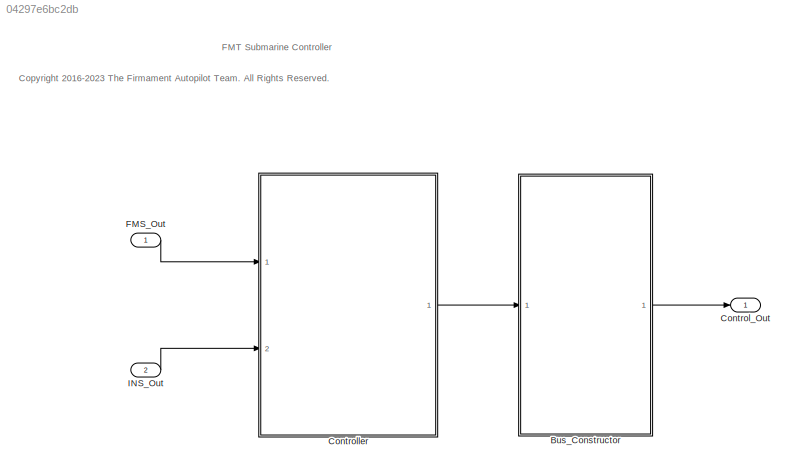
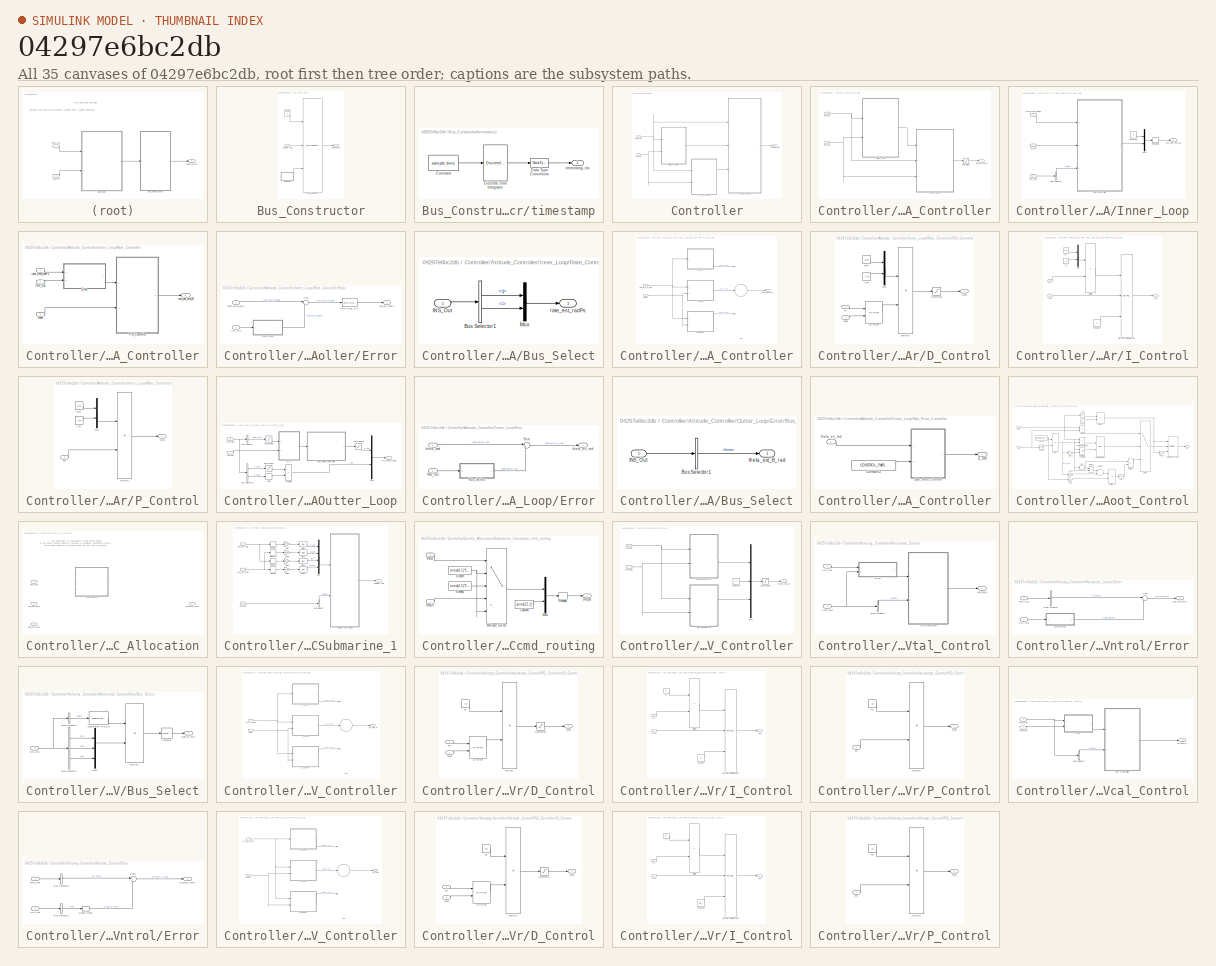
[diagram: thumbnail index - all 35 canvases of the model, root first then tree order]
MODEL slx_04297e6bc2db
KIND model
CONFIG AbsTol = auto
CONFIG EnableMultiTasking = off
CONFIG FixedStep = control_dt
CONFIG MaxStep = auto
CONFIG MinStep = auto
CONFIG RelTol = 1e-3
CONFIG SampleTimeConstraint = Unconstrained
CONFIG Solver = FixedStepDiscrete
CONFIG SolverName = FixedStepDiscrete
CONFIG StartTime = 0.0
CONFIG StopTime = 10.0
BLOCK [SubSystem] Bus_Constructor
  Ports = [1, 1]
  RequestExecContextInheritance = off
BLOCK [BusAssignment] Bus_Constructor/Bus Assignment
  AssignedSignals = actuator_cmd,timestamp
  Ports = [3, 1]
BLOCK [Constant] Bus_Constructor/Constant
  OutDataTypeStr = Bus: Control_Out_Bus
  Value = 0
BLOCK [Outport] Bus_Constructor/Control_Out
  IconDisplay = Port number
BLOCK [Inport] Bus_Constructor/actuator_cmd
  IconDisplay = Port number
BLOCK [SubSystem] Bus_Constructor/timestamp
  Ports = [0, 1]
  RequestExecContextInheritance = off
BLOCK [Constant] Bus_Constructor/timestamp/Constant
  Value = sample_time
BLOCK [DataTypeConversion] Bus_Constructor/timestamp/Data Type Conversion
  OutDataTypeStr = uint32
  RndMeth = Floor
  SaturateOnIntegerOverflow = off
BLOCK [DiscreteIntegrator] Bus_Constructor/timestamp/Discrete-Time Integrator
  ICPrevOutput = DiscIntNeverNeededParam
  ICPrevScaledInput = DiscIntNeverNeededParam
  InitialConditionSetting = Auto
  IntegratorMethod = Accumulation: Forward Euler
  Ports = [1, 1]
  SampleTime = -1
BLOCK [Outport] Bus_Constructor/timestamp/timestamp_ms
  IconDisplay = Port number
BLOCK [Outport] Control_Out
  IconDisplay = Port number
  OutDataTypeStr = Bus: Control_Out_Bus
BLOCK [SubSystem] Controller
  Ports = [2, 1]
  RequestExecContextInheritance = off
BLOCK [SubSystem] Controller/Attitude_Controller
  Ports = [2, 1]
  RequestExecContextInheritance = off
BLOCK [Inport] Controller/Attitude_Controller/FMS_Out
  IconDisplay = Port number
BLOCK [Inport] Controller/Attitude_Controller/INS_Out
  IconDisplay = Port number
  Port = 2
BLOCK [SubSystem] Controller/Attitude_Controller/Inner_Loop
  Ports = [3, 1]
  RequestExecContextInheritance = off
BLOCK [BusSelector] Controller/Attitude_Controller/Inner_Loop/Bus Selector
  OutputAsBus = off
  OutputSignals = reset
  Ports = [1, 1]
BLOCK [Constant] Controller/Attitude_Controller/Inner_Loop/Constant
  OutDataTypeStr = single
  Value = 0
BLOCK [Inport] Controller/Attitude_Controller/Inner_Loop/FMS_Out
  IconDisplay = Port number
  Port = 3
BLOCK [Inport] Controller/Attitude_Controller/Inner_Loop/INS_Out
  IconDisplay = Port number
  Port = 2
BLOCK [Mux] Controller/Attitude_Controller/Inner_Loop/Mux
  DisplayOption = bar
  Inputs = 2
  Ports = [2, 1]
BLOCK [SubSystem] Controller/Attitude_Controller/Inner_Loop/Rate_Controller
  Ports = [3, 1]
  RequestExecContextInheritance = off
BLOCK [SubSystem] Controller/Attitude_Controller/Inner_Loop/Rate_Controller/Error
  Ports = [2, 1]
  RequestExecContextInheritance = off
BLOCK [SubSystem] Controller/Attitude_Controller/Inner_Loop/Rate_Controller/Error/Bus_Select
  Ports = [1, 1]
  RequestExecContextInheritance = off
BLOCK [BusSelector] Controller/Attitude_Controller/Inner_Loop/Rate_Controller/Error/Bus_Select/Bus Selector1
  OutputAsBus = off
  OutputSignals = q,r
  Ports = [1, 2]
BLOCK [Inport] Controller/Attitude_Controller/Inner_Loop/Rate_Controller/Error/Bus_Select/INS_Out
  IconDisplay = Port number
BLOCK [Mux] Controller/Attitude_Controller/Inner_Loop/Rate_Controller/Error/Bus_Select/Mux
  DisplayOption = bar
  Inputs = 2
  Ports = [2, 1]
BLOCK [Outport] Controller/Attitude_Controller/Inner_Loop/Rate_Controller/Error/Bus_Select/rate_est_radPs
  IconDisplay = Port number
BLOCK [Reference] Controller/Attitude_Controller/Inner_Loop/Rate_Controller/Error/First Order LPF  REF=FMT_Model_Lib/Filter/First Order LPF
  Ports = [1, 1]
  SourceBlock = FMT_Model_Lib/Filter/First Order LPF
  SourceProductName = FMT Toolbox
  SourceType = First-order Low-pass filter
BLOCK [Inport] Controller/Attitude_Controller/Inner_Loop/Rate_Controller/Error/INS_Out
  IconDisplay = Port number
  Port = 2
BLOCK [Sum] Controller/Attitude_Controller/Inner_Loop/Rate_Controller/Error/Sum
  IconShape = round
  InputSameDT = off
  Inputs = |+-
  OutDataTypeStr = Inherit: Inherit via internal rule
  Ports = [2, 1]
  SaturateOnIntegerOverflow = off
BLOCK [Outport] Controller/Attitude_Controller/Inner_Loop/Rate_Controller/Error/rate_err_radPs
  IconDisplay = Port number
BLOCK [Inport] Controller/Attitude_Controller/Inner_Loop/Rate_Controller/Error/rater_cmd_radPs
  IconDisplay = Port number
BLOCK [Inport] Controller/Attitude_Controller/Inner_Loop/Rate_Controller/INS_Out
  IconDisplay = Port number
  Port = 2
BLOCK [SubSystem] Controller/Attitude_Controller/Inner_Loop/Rate_Controller/PID_Controller
  Ports = [2, 1]
  RequestExecContextInheritance = off
BLOCK [Sum] Controller/Attitude_Controller/Inner_Loop/Rate_Controller/PID_Controller/Add
  AccumDataTypeStr = Inherit: Same as first input
  InputSameDT = off
  Inputs = +++
  OutDataTypeStr = Inherit: Inherit via internal rule
  Ports = [3, 1]
  SaturateOnIntegerOverflow = off
BLOCK [SubSystem] Controller/Attitude_Controller/Inner_Loop/Rate_Controller/PID_Controller/D_Control
  Ports = [2, 1]
  RequestExecContextInheritance = off
BLOCK [Reference] Controller/Attitude_Controller/Inner_Loop/Rate_Controller/PID_Controller/D_Control/DT Filter  REF=FMT_Model_Lib/Filter/DT Filter
  Ports = [2, 1]
  SourceBlock = FMT_Model_Lib/Filter/DT Filter
  SourceProductName = FMT Toolbox
  SourceType = Derivative Tracking Filter
BLOCK [Product] Controller/Attitude_Controller/Inner_Loop/Rate_Controller/PID_Controller/D_Control/Multiply
  InputSameDT = off
  Ports = [2, 1]
  RndMeth = Floor
  SaturateOnIntegerOverflow = off
BLOCK [Mux] Controller/Attitude_Controller/Inner_Loop/Rate_Controller/PID_Controller/D_Control/Mux
  DisplayOption = bar
  Inputs = 2
  Ports = [2, 1]
BLOCK [Saturate] Controller/Attitude_Controller/Inner_Loop/Rate_Controller/PID_Controller/D_Control/Saturation
  InputPortMap = u0
  LowerLimit = min_d
  Ports = [1, 1]
  UpperLimit = max_d
BLOCK [Outport] Controller/Attitude_Controller/Inner_Loop/Rate_Controller/PID_Controller/D_Control/d_out
  IconDisplay = Port number
BLOCK [Inport] Controller/Attitude_Controller/Inner_Loop/Rate_Controller/PID_Controller/D_Control/err
  IconDisplay = Port number
BLOCK [Constant] Controller/Attitude_Controller/Inner_Loop/Rate_Controller/PID_Controller/D_Control/q_kd
  OutDataTypeStr = single
  Value = q_kd
BLOCK [Constant] Controller/Attitude_Controller/Inner_Loop/Rate_Controller/PID_Controller/D_Control/r_kd
  OutDataTypeStr = single
  Value = r_kd
BLOCK [Inport] Controller/Attitude_Controller/Inner_Loop/Rate_Controller/PID_Controller/D_Control/reset
  IconDisplay = Port number
  Port = 2
BLOCK [SubSystem] Controller/Attitude_Controller/Inner_Loop/Rate_Controller/PID_Controller/I_Control
  Ports = [2, 1]
  RequestExecContextInheritance = off
BLOCK [Constant] Controller/Attitude_Controller/Inner_Loop/Rate_Controller/PID_Controller/I_Control/Constant
  OutDataTypeStr = single
  Value = 0
BLOCK [DiscreteIntegrator] Controller/Attitude_Controller/Inner_Loop/Rate_Controller/PID_Controller/I_Control/Discrete-Time Integrator
  ExternalReset = level
  ICPrevOutput = DiscIntNeverNeededParam
  ICPrevScaledInput = DiscIntNeverNeededParam
  InitialConditionSetting = Auto
  InitialConditionSource = external
  LimitOutput = on
  LowerSaturationLimit = min_i
  Ports = [3, 1]
  SampleTime = -1
  UpperSaturationLimit = max_i
BLOCK [Product] Controller/Attitude_Controller/Inner_Loop/Rate_Controller/PID_Controller/I_Control/Multiply
  InputSameDT = off
  Ports = [2, 1]
  RndMeth = Floor
  SaturateOnIntegerOverflow = off
BLOCK [Mux] Controller/Attitude_Controller/Inner_Loop/Rate_Controller/PID_Controller/I_Control/Mux
  DisplayOption = bar
  Inputs = 2
  Ports = [2, 1]
BLOCK [Inport] Controller/Attitude_Controller/Inner_Loop/Rate_Controller/PID_Controller/I_Control/err
  IconDisplay = Port number
BLOCK [Outport] Controller/Attitude_Controller/Inner_Loop/Rate_Controller/PID_Controller/I_Control/i_out
  IconDisplay = Port number
BLOCK [Constant] Controller/Attitude_Controller/Inner_Loop/Rate_Controller/PID_Controller/I_Control/q_ki
  OutDataTypeStr = single
  Value = q_ki
BLOCK [Constant] Controller/Attitude_Controller/Inner_Loop/Rate_Controller/PID_Controller/I_Control/r_ki
  OutDataTypeStr = single
  Value = r_ki
BLOCK [Inport] Controller/Attitude_Controller/Inner_Loop/Rate_Controller/PID_Controller/I_Control/reset
  IconDisplay = Port number
  Port = 2
BLOCK [SubSystem] Controller/Attitude_Controller/Inner_Loop/Rate_Controller/PID_Controller/P_Control
  Ports = [1, 1]
  RequestExecContextInheritance = off
BLOCK [Product] Controller/Attitude_Controller/Inner_Loop/Rate_Controller/PID_Controller/P_Control/Multiply
  InputSameDT = off
  Ports = [2, 1]
  RndMeth = Floor
  SaturateOnIntegerOverflow = off
BLOCK [Mux] Controller/Attitude_Controller/Inner_Loop/Rate_Controller/PID_Controller/P_Control/Mux
  DisplayOption = bar
  Inputs = 2
  Ports = [2, 1]
BLOCK [Inport] Controller/Attitude_Controller/Inner_Loop/Rate_Controller/PID_Controller/P_Control/err
  IconDisplay = Port number
BLOCK [Outport] Controller/Attitude_Controller/Inner_Loop/Rate_Controller/PID_Controller/P_Control/p_out
  IconDisplay = Port number
BLOCK [Constant] Controller/Attitude_Controller/Inner_Loop/Rate_Controller/PID_Controller/P_Control/q_kp
  OutDataTypeStr = single
  Value = q_kp
BLOCK [Constant] Controller/Attitude_Controller/Inner_Loop/Rate_Controller/PID_Controller/P_Control/r_kp
  OutDataTypeStr = single
  Value = r_kp
BLOCK [Outport] Controller/Attitude_Controller/Inner_Loop/Rate_Controller/PID_Controller/rate_dot_cmd_C
  IconDisplay = Port number
BLOCK [Inport] Controller/Attitude_Controller/Inner_Loop/Rate_Controller/PID_Controller/rate_err_C_mPs
  IconDisplay = Port number
BLOCK [Inport] Controller/Attitude_Controller/Inner_Loop/Rate_Controller/PID_Controller/reset
  IconDisplay = Port number
  Port = 2
BLOCK [Outport] Controller/Attitude_Controller/Inner_Loop/Rate_Controller/rate_dot_cmd_B
  IconDisplay = Port number
BLOCK [Inport] Controller/Attitude_Controller/Inner_Loop/Rate_Controller/rater_cmd_radPs
  IconDisplay = Port number
BLOCK [Inport] Controller/Attitude_Controller/Inner_Loop/Rate_Controller/reset
  IconDisplay = Port number
  Port = 3
BLOCK [Reshape] Controller/Attitude_Controller/Inner_Loop/Reshape
  OutputDimensionality = Column vector (2-D)
  Ports = [1, 1]
BLOCK [Inport] Controller/Attitude_Controller/Inner_Loop/rate_cmd_radPs
  IconDisplay = Port number
BLOCK [Outport] Controller/Attitude_Controller/Inner_Loop/rate_dot_cmd_B
  IconDisplay = Port number
BLOCK [SubSystem] Controller/Attitude_Controller/Outter_Loop
  Ports = [2, 1]
  RequestExecContextInheritance = off
BLOCK [BusSelector] Controller/Attitude_Controller/Outter_Loop/Bus Selector
  OutputAsBus = off
  OutputSignals = theta_cmd
  Ports = [1, 1]
BLOCK [BusSelector] Controller/Attitude_Controller/Outter_Loop/Bus Selector1
  OutputAsBus = off
  OutputSignals = r_cmd,u_cmd
  Ports = [1, 2]
BLOCK [SubSystem] Controller/Attitude_Controller/Outter_Loop/Error
  Ports = [2, 1]
  RequestExecContextInheritance = off
BLOCK [SubSystem] Controller/Attitude_Controller/Outter_Loop/Error/Bus_Select
  Ports = [1, 1]
  RequestExecContextInheritance = off
BLOCK [BusSelector] Controller/Attitude_Controller/Outter_Loop/Error/Bus_Select/Bus Selector1
  OutputAsBus = off
  OutputSignals = theta
  Ports = [1, 1]
BLOCK [Inport] Controller/Attitude_Controller/Outter_Loop/Error/Bus_Select/INS_Out
  IconDisplay = Port number
BLOCK [Outport] Controller/Attitude_Controller/Outter_Loop/Error/Bus_Select/theta_est_B_rad
  IconDisplay = Port number
BLOCK [Inport] Controller/Attitude_Controller/Outter_Loop/Error/INS_Out
  IconDisplay = Port number
  Port = 2
BLOCK [Sum] Controller/Attitude_Controller/Outter_Loop/Error/Sum
  IconShape = round
  InputSameDT = off
  Inputs = |+-
  OutDataTypeStr = Inherit: Inherit via internal rule
  Ports = [2, 1]
  SaturateOnIntegerOverflow = off
BLOCK [Inport] Controller/Attitude_Controller/Outter_Loop/Error/theta_cmd
  IconDisplay = Port number
BLOCK [Outport] Controller/Attitude_Controller/Outter_Loop/Error/theta_err_rad
  IconDisplay = Port number
BLOCK [Inport] Controller/Attitude_Controller/Outter_Loop/FMS_Out
  IconDisplay = Port number
  Port = 2
BLOCK [Inport] Controller/Attitude_Controller/Outter_Loop/INS_Out
  IconDisplay = Port number
BLOCK [Product] Controller/Attitude_Controller/Outter_Loop/Multiply
  InputSameDT = off
  OutDataTypeStr = Inherit: Inherit via internal rule
  Ports = [2, 1]
  RndMeth = Floor
  SaturateOnIntegerOverflow = off
BLOCK [Mux] Controller/Attitude_Controller/Outter_Loop/Mux
  DisplayOption = bar
  Inputs = 2
  Ports = [2, 1]
BLOCK [Saturate] Controller/Attitude_Controller/Outter_Loop/Saturation
  InputPortMap = u0
  LowerLimit = -CONTROL_PARAM.PITCH_CMD_LIM
  Ports = [1, 1]
  UpperLimit = CONTROL_PARAM.PITCH_CMD_LIM
BLOCK [Saturate] Controller/Attitude_Controller/Outter_Loop/Saturation1
  InputPortMap = u0
  LowerLimit = -CONTROL_PARAM.R_CMD_LIM
  Ports = [1, 1]
  UpperLimit = CONTROL_PARAM.R_CMD_LIM
BLOCK [Saturate] Controller/Attitude_Controller/Outter_Loop/Saturation2
  InputPortMap = u0
  LowerLimit = -CONTROL_PARAM.Q_CMD_LIM
  Ports = [1, 1]
  UpperLimit = CONTROL_PARAM.Q_CMD_LIM
BLOCK [Signum] Controller/Attitude_Controller/Outter_Loop/Sign
BLOCK [SubSystem] Controller/Attitude_Controller/Outter_Loop/Sqrt_Root_Controller
  Ports = [1, 1]
  RequestExecContextInheritance = off
BLOCK [Constant] Controller/Attitude_Controller/Outter_Loop/Sqrt_Root_Controller/Constant2
  Value = CONTROL_PARAM.PITCH_P
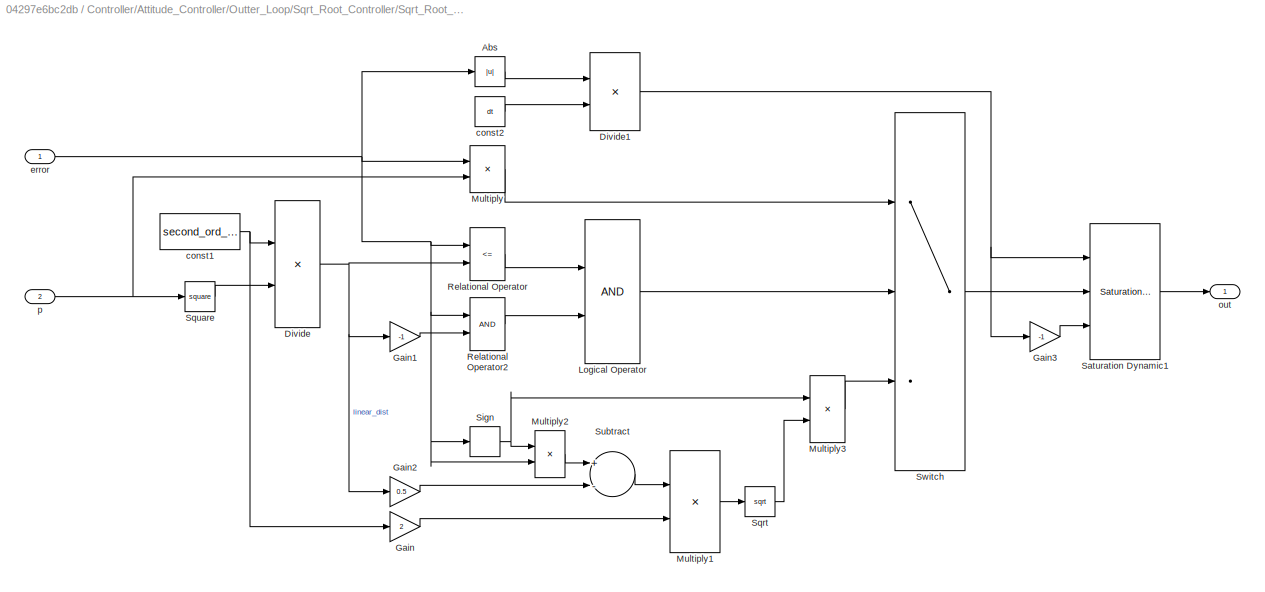
BLOCK [SubSystem] Controller/Attitude_Controller/Outter_Loop/Sqrt_Root_Controller/Sqrt_Root_Control
  Ports = [2, 1]
  RequestExecContextInheritance = off
BLOCK [Abs] Controller/Attitude_Controller/Outter_Loop/Sqrt_Root_Controller/Sqrt_Root_Control/Abs
  SaturateOnIntegerOverflow = off
BLOCK [Product] Controller/Attitude_Controller/Outter_Loop/Sqrt_Root_Controller/Sqrt_Root_Control/Divide
  InputSameDT = off
  Inputs = */
  OutDataTypeStr = Inherit: Inherit via internal rule
  Ports = [2, 1]
  RndMeth = Floor
  SaturateOnIntegerOverflow = off
BLOCK [Product] Controller/Attitude_Controller/Outter_Loop/Sqrt_Root_Controller/Sqrt_Root_Control/Divide1
  InputSameDT = off
  Inputs = */
  OutDataTypeStr = Inherit: Inherit via internal rule
  Ports = [2, 1]
  RndMeth = Floor
  SaturateOnIntegerOverflow = off
BLOCK [Gain] Controller/Attitude_Controller/Outter_Loop/Sqrt_Root_Controller/Sqrt_Root_Control/Gain
  Gain = 2
  ParamDataTypeStr = Inherit: Inherit via internal rule
  SaturateOnIntegerOverflow = off
BLOCK [Gain] Controller/Attitude_Controller/Outter_Loop/Sqrt_Root_Controller/Sqrt_Root_Control/Gain1
  Gain = -1
  ParamDataTypeStr = Inherit: Inherit via internal rule
  SaturateOnIntegerOverflow = off
BLOCK [Gain] Controller/Attitude_Controller/Outter_Loop/Sqrt_Root_Controller/Sqrt_Root_Control/Gain2
  Gain = 0.5
  ParamDataTypeStr = Inherit: Inherit via internal rule
  SaturateOnIntegerOverflow = off
BLOCK [Gain] Controller/Attitude_Controller/Outter_Loop/Sqrt_Root_Controller/Sqrt_Root_Control/Gain3
  Gain = -1
  ParamDataTypeStr = Inherit: Inherit via internal rule
  SaturateOnIntegerOverflow = off
BLOCK [Logic] Controller/Attitude_Controller/Outter_Loop/Sqrt_Root_Controller/Sqrt_Root_Control/Logical Operator
  AllPortsSameDT = off
  OutDataTypeStr = boolean
  Ports = [2, 1]
BLOCK [Product] Controller/Attitude_Controller/Outter_Loop/Sqrt_Root_Controller/Sqrt_Root_Control/Multiply
  InputSameDT = off
  OutDataTypeStr = Inherit: Inherit via internal rule
  Ports = [2, 1]
  RndMeth = Floor
  SaturateOnIntegerOverflow = off
BLOCK [Product] Controller/Attitude_Controller/Outter_Loop/Sqrt_Root_Controller/Sqrt_Root_Control/Multiply1
  InputSameDT = off
  OutDataTypeStr = Inherit: Inherit via internal rule
  Ports = [2, 1]
  RndMeth = Floor
  SaturateOnIntegerOverflow = off
BLOCK [Product] Controller/Attitude_Controller/Outter_Loop/Sqrt_Root_Controller/Sqrt_Root_Control/Multiply2
  InputSameDT = off
  OutDataTypeStr = Inherit: Inherit via internal rule
  Ports = [2, 1]
  RndMeth = Floor
  SaturateOnIntegerOverflow = off
BLOCK [Product] Controller/Attitude_Controller/Outter_Loop/Sqrt_Root_Controller/Sqrt_Root_Control/Multiply3
  InputSameDT = off
  OutDataTypeStr = Inherit: Inherit via internal rule
  Ports = [2, 1]
  RndMeth = Floor
  SaturateOnIntegerOverflow = off
BLOCK [RelationalOperator] Controller/Attitude_Controller/Outter_Loop/Sqrt_Root_Controller/Sqrt_Root_Control/Relational Operator
  InputSameDT = off
  Operator = <=
  OutDataTypeStr = boolean
  Ports = [2, 1]
  RndMeth = Simplest
BLOCK [RelationalOperator] Controller/Attitude_Controller/Outter_Loop/Sqrt_Root_Controller/Sqrt_Root_Control/Relational Operator2
  InputSameDT = off
  OutDataTypeStr = boolean
  Ports = [2, 1]
  RndMeth = Simplest
BLOCK [Reference] Controller/Attitude_Controller/Outter_Loop/Sqrt_Root_Controller/Sqrt_Root_Control/Saturation Dynamic1  REF=simulink/Discontinuities/Saturation
Dynamic
  Ports = [3, 1]
  SourceBlock = simulink/Discontinuities/Saturation\nDynamic
  SourceProductBaseCode = SL
  SourceProductName = Simulink
  SourceType = Saturation Dynamic
BLOCK [Signum] Controller/Attitude_Controller/Outter_Loop/Sqrt_Root_Controller/Sqrt_Root_Control/Sign
BLOCK [Sqrt] Controller/Attitude_Controller/Outter_Loop/Sqrt_Root_Controller/Sqrt_Root_Control/Sqrt
BLOCK [Math] Controller/Attitude_Controller/Outter_Loop/Sqrt_Root_Controller/Sqrt_Root_Control/Square
  Operator = square
  Ports = [1, 1]
BLOCK [Sum] Controller/Attitude_Controller/Outter_Loop/Sqrt_Root_Controller/Sqrt_Root_Control/Subtract
  InputSameDT = off
  Inputs = +-
  OutDataTypeStr = Inherit: Inherit via internal rule
  Ports = [2, 1]
  SaturateOnIntegerOverflow = off
BLOCK [Switch] Controller/Attitude_Controller/Outter_Loop/Sqrt_Root_Controller/Sqrt_Root_Control/Switch
  Criteria = u2 > Threshold
  InputSameDT = off
  SaturateOnIntegerOverflow = off
BLOCK [Constant] Controller/Attitude_Controller/Outter_Loop/Sqrt_Root_Controller/Sqrt_Root_Control/const1
  OutDataTypeStr = single
  Value = second_ord_lim
BLOCK [Constant] Controller/Attitude_Controller/Outter_Loop/Sqrt_Root_Controller/Sqrt_Root_Control/const2
  OutDataTypeStr = single
  Value = dt
BLOCK [Inport] Controller/Attitude_Controller/Outter_Loop/Sqrt_Root_Controller/Sqrt_Root_Control/error
  IconDisplay = Port number
BLOCK [Outport] Controller/Attitude_Controller/Outter_Loop/Sqrt_Root_Controller/Sqrt_Root_Control/out
  IconDisplay = Port number
BLOCK [Inport] Controller/Attitude_Controller/Outter_Loop/Sqrt_Root_Controller/Sqrt_Root_Control/p
  IconDisplay = Port number
  Port = 2
BLOCK [Outport] Controller/Attitude_Controller/Outter_Loop/Sqrt_Root_Controller/q_cmd
  IconDisplay = Port number
BLOCK [Inport] Controller/Attitude_Controller/Outter_Loop/Sqrt_Root_Controller/theta_err_rad
  IconDisplay = Port number
BLOCK [Outport] Controller/Attitude_Controller/Outter_Loop/rate_cmd_radPs
  IconDisplay = Port number
BLOCK [Saturate] Controller/Attitude_Controller/Saturation1
  InputPortMap = u0
  LowerLimit = -1
  Ports = [1, 1]
  UpperLimit = 1
BLOCK [Outport] Controller/Attitude_Controller/torque_cmd_B
  IconDisplay = Port number
BLOCK [SubSystem] Controller/Control_Allocation
  GeneratePreprocessorConditionals = on
  Ports = [3, 1]
  RequestExecContextInheritance = off
  Variant = on
BLOCK [Inport] Controller/Control_Allocation/FMS_Out
  IconDisplay = Port number
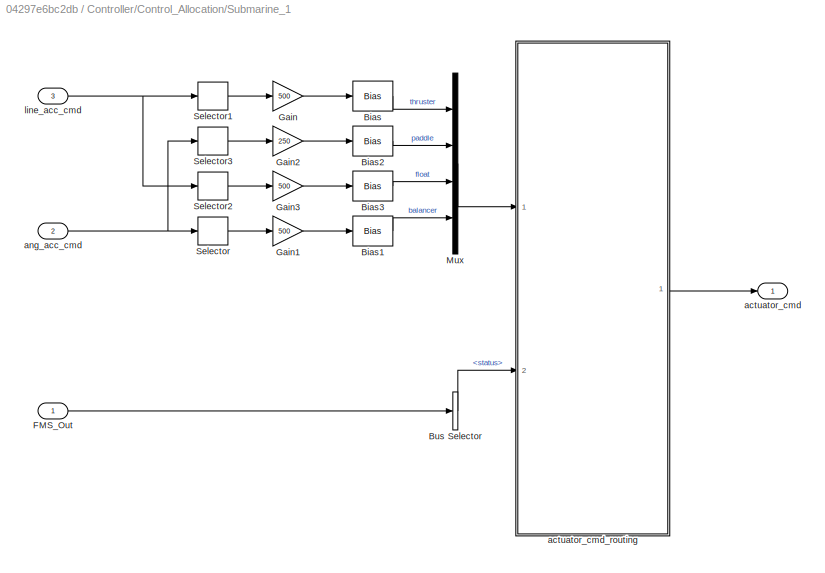
BLOCK [SubSystem] Controller/Control_Allocation/Submarine_1
  Ports = [3, 1]
  RequestExecContextInheritance = off
  TreatAsAtomicUnit = on
  VariantControl = AIRFRAME==1
BLOCK [Bias] Controller/Control_Allocation/Submarine_1/Bias
  Bias = 1500
  SaturateOnIntegerOverflow = off
BLOCK [Bias] Controller/Control_Allocation/Submarine_1/Bias1
  Bias = 1500
  SaturateOnIntegerOverflow = off
BLOCK [Bias] Controller/Control_Allocation/Submarine_1/Bias2
  Bias = 1500
  SaturateOnIntegerOverflow = off
BLOCK [Bias] Controller/Control_Allocation/Submarine_1/Bias3
  Bias = 1500
  SaturateOnIntegerOverflow = off
BLOCK [BusSelector] Controller/Control_Allocation/Submarine_1/Bus Selector
  OutputAsBus = off
  OutputSignals = status
  Ports = [1, 1]
BLOCK [Inport] Controller/Control_Allocation/Submarine_1/FMS_Out
  IconDisplay = Port number
BLOCK [Gain] Controller/Control_Allocation/Submarine_1/Gain
  Gain = 500
  OutDataTypeStr = uint16
  ParamDataTypeStr = Inherit: Inherit via internal rule
  SaturateOnIntegerOverflow = off
BLOCK [Gain] Controller/Control_Allocation/Submarine_1/Gain1
  Gain = 500
  OutDataTypeStr = uint16
  ParamDataTypeStr = Inherit: Inherit via internal rule
  SaturateOnIntegerOverflow = off
BLOCK [Gain] Controller/Control_Allocation/Submarine_1/Gain2
  Gain = 250
  OutDataTypeStr = uint16
  ParamDataTypeStr = Inherit: Inherit via internal rule
  SaturateOnIntegerOverflow = off
BLOCK [Gain] Controller/Control_Allocation/Submarine_1/Gain3
  Gain = 500
  OutDataTypeStr = uint16
  ParamDataTypeStr = Inherit: Inherit via internal rule
  SaturateOnIntegerOverflow = off
BLOCK [Mux] Controller/Control_Allocation/Submarine_1/Mux
  DisplayOption = bar
  Ports = [4, 1]
BLOCK [Selector] Controller/Control_Allocation/Submarine_1/Selector
  IndexOptions = Index vector (dialog)
  Indices = 2
  InputPortWidth = 3
  OutputSizes = 1
  Ports = [1, 1]
BLOCK [Selector] Controller/Control_Allocation/Submarine_1/Selector1
  IndexOptions = Index vector (dialog)
  Indices = 1
  InputPortWidth = 3
  OutputSizes = 1
  Ports = [1, 1]
BLOCK [Selector] Controller/Control_Allocation/Submarine_1/Selector2
  IndexOptions = Index vector (dialog)
  Indices = 3
  InputPortWidth = 3
  OutputSizes = 1
  Ports = [1, 1]
BLOCK [Selector] Controller/Control_Allocation/Submarine_1/Selector3
  IndexOptions = Index vector (dialog)
  Indices = 3
  InputPortWidth = 3
  OutputSizes = 1
  Ports = [1, 1]
BLOCK [Outport] Controller/Control_Allocation/Submarine_1/actuator_cmd
  IconDisplay = Port number
BLOCK [SubSystem] Controller/Control_Allocation/Submarine_1/actuator_cmd_routing
  Ports = [2, 1]
  RequestExecContextInheritance = off
BLOCK [Constant] Controller/Control_Allocation/Submarine_1/actuator_cmd_routing/Constant
  OutDataTypeStr = uint16
  Value = zeros(12,1)
  VectorParams1D = off
BLOCK [Constant] Controller/Control_Allocation/Submarine_1/actuator_cmd_routing/Disarm
  OutDataTypeStr = uint16
  Value = ones(4,1)*1500
  VectorParams1D = off
BLOCK [MultiPortSwitch] Controller/Control_Allocation/Submarine_1/actuator_cmd_routing/Multiport Switch
  DataPortForDefault = Additional data port
  DiagnosticForDefault = None
  InputSameDT = off
  Ports = [5, 1]
  SaturateOnIntegerOverflow = off
BLOCK [Mux] Controller/Control_Allocation/Submarine_1/actuator_cmd_routing/Mux1
  DisplayOption = bar
  Inputs = 2
  Ports = [2, 1]
BLOCK [Reshape] Controller/Control_Allocation/Submarine_1/actuator_cmd_routing/Reshape
  OutputDimensionality = Customize
  OutputDimensions = [16,1]
  Ports = [1, 1]
BLOCK [Constant] Controller/Control_Allocation/Submarine_1/actuator_cmd_routing/Standby
  OutDataTypeStr = uint16
  Value = ones(4,1)*1500
  VectorParams1D = off
BLOCK [Inport] Controller/Control_Allocation/Submarine_1/actuator_cmd_routing/cmd_in
  IconDisplay = Port number
BLOCK [Outport] Controller/Control_Allocation/Submarine_1/actuator_cmd_routing/cmd_out
  IconDisplay = Port number
BLOCK [Inport] Controller/Control_Allocation/Submarine_1/actuator_cmd_routing/status
  IconDisplay = Port number
  Port = 2
BLOCK [Inport] Controller/Control_Allocation/Submarine_1/ang_acc_cmd
  IconDisplay = Port number
  Port = 2
BLOCK [Inport] Controller/Control_Allocation/Submarine_1/line_acc_cmd
  IconDisplay = Port number
  Port = 3
BLOCK [Outport] Controller/Control_Allocation/actuator_cmd
  IconDisplay = Port number
BLOCK [Inport] Controller/Control_Allocation/ang_acc_cmd
  IconDisplay = Port number
  Port = 2
BLOCK [Inport] Controller/Control_Allocation/line_acc_cmd
  IconDisplay = Port number
  Port = 3
BLOCK [Inport] Controller/FMS_Out
  IconDisplay = Port number
BLOCK [Inport] Controller/INS_Out
  IconDisplay = Port number
  Port = 2
BLOCK [SubSystem] Controller/Velocity_Controller
  Ports = [2, 1]
  RequestExecContextInheritance = off
BLOCK [Constant] Controller/Velocity_Controller/Constant
  OutDataTypeStr = single
  Value = 0
BLOCK [Inport] Controller/Velocity_Controller/FMS_Out
  IconDisplay = Port number
BLOCK [SubSystem] Controller/Velocity_Controller/Horizontal_Control
  Ports = [2, 1]
  RequestExecContextInheritance = off
BLOCK [BusSelector] Controller/Velocity_Controller/Horizontal_Control/Bus Selector
  OutputAsBus = off
  OutputSignals = reset
  Ports = [1, 1]
BLOCK [SubSystem] Controller/Velocity_Controller/Horizontal_Control/Error
  Ports = [2, 1]
  RequestExecContextInheritance = off
BLOCK [BusSelector] Controller/Velocity_Controller/Horizontal_Control/Error/Bus Selector
  OutputAsBus = off
  OutputSignals = u_cmd
  Ports = [1, 1]
BLOCK [SubSystem] Controller/Velocity_Controller/Horizontal_Control/Error/Bus_Select
  Ports = [1, 1]
  RequestExecContextInheritance = off
BLOCK [BusSelector] Controller/Velocity_Controller/Horizontal_Control/Error/Bus_Select/Bus Selector1
  OutputAsBus = off
  OutputSignals = vn,ve,vd
  Ports = [1, 3]
BLOCK [BusSelector] Controller/Velocity_Controller/Horizontal_Control/Error/Bus_Select/Bus Selector2
  OutputAsBus = off
  OutputSignals = quat
  Ports = [1, 1]
BLOCK [Inport] Controller/Velocity_Controller/Horizontal_Control/Error/Bus_Select/INS_Out
  IconDisplay = Port number
BLOCK [Product] Controller/Velocity_Controller/Horizontal_Control/Error/Bus_Select/Multiply
  InputSameDT = off
  Multiplication = Matrix(*)
  OutDataTypeStr = Inherit: Inherit via internal rule
  Ports = [2, 1]
  RndMeth = Floor
  SaturateOnIntegerOverflow = off
BLOCK [Mux] Controller/Velocity_Controller/Horizontal_Control/Error/Bus_Select/Mux2
  DisplayOption = bar
  Inputs = 3
  Ports = [3, 1]
BLOCK [Reference] Controller/Velocity_Controller/Horizontal_Control/Error/Bus_Select/Quaternion To DCM  REF=FMT_Model_Lib/Quaternion/Quaternion To DCM
  Ports = [1, 1]
  SourceBlock = FMT_Model_Lib/Quaternion/Quaternion To DCM
  SourceProductName = FMT Toolbox
  SourceType = Quaternion To Direction Cosine Matrix
BLOCK [Selector] Controller/Velocity_Controller/Horizontal_Control/Error/Bus_Select/Selector
  IndexOptions = Index vector (dialog)
  Indices = 1
  InputPortWidth = 3
  OutputSizes = 1
  Ports = [1, 1]
BLOCK [Outport] Controller/Velocity_Controller/Horizontal_Control/Error/Bus_Select/u_est_B_mPs
  IconDisplay = Port number
BLOCK [Inport] Controller/Velocity_Controller/Horizontal_Control/Error/FMS_Out
  IconDisplay = Port number
  Port = 2
BLOCK [Inport] Controller/Velocity_Controller/Horizontal_Control/Error/INS_Out
  IconDisplay = Port number
BLOCK [Sum] Controller/Velocity_Controller/Horizontal_Control/Error/Sum
  IconShape = round
  InputSameDT = off
  Inputs = |+-
  OutDataTypeStr = Inherit: Inherit via internal rule
  Ports = [2, 1]
  SaturateOnIntegerOverflow = off
BLOCK [Outport] Controller/Velocity_Controller/Horizontal_Control/Error/u_err_B_mPs
  IconDisplay = Port number
BLOCK [Inport] Controller/Velocity_Controller/Horizontal_Control/FMS_Out
  IconDisplay = Port number
  Port = 2
BLOCK [Inport] Controller/Velocity_Controller/Horizontal_Control/INS_Out
  IconDisplay = Port number
BLOCK [SubSystem] Controller/Velocity_Controller/Horizontal_Control/PID_Controller
  Ports = [2, 1]
  RequestExecContextInheritance = off
BLOCK [Sum] Controller/Velocity_Controller/Horizontal_Control/PID_Controller/Add
  AccumDataTypeStr = Inherit: Same as first input
  InputSameDT = off
  Inputs = +++
  OutDataTypeStr = Inherit: Inherit via internal rule
  Ports = [3, 1]
  SaturateOnIntegerOverflow = off
BLOCK [SubSystem] Controller/Velocity_Controller/Horizontal_Control/PID_Controller/D_Control
  Ports = [2, 1]
  RequestExecContextInheritance = off
BLOCK [Reference] Controller/Velocity_Controller/Horizontal_Control/PID_Controller/D_Control/DT Filter  REF=FMT_Model_Lib/Filter/DT Filter
  Ports = [2, 1]
  SourceBlock = FMT_Model_Lib/Filter/DT Filter
  SourceProductName = FMT Toolbox
  SourceType = Derivative Tracking Filter
BLOCK [Product] Controller/Velocity_Controller/Horizontal_Control/PID_Controller/D_Control/Multiply
  InputSameDT = off
  Ports = [2, 1]
  RndMeth = Floor
  SaturateOnIntegerOverflow = off
BLOCK [Saturate] Controller/Velocity_Controller/Horizontal_Control/PID_Controller/D_Control/Saturation
  InputPortMap = u0
  LowerLimit = min_d
  Ports = [1, 1]
  UpperLimit = max_d
BLOCK [Outport] Controller/Velocity_Controller/Horizontal_Control/PID_Controller/D_Control/d_out
  IconDisplay = Port number
BLOCK [Inport] Controller/Velocity_Controller/Horizontal_Control/PID_Controller/D_Control/err
  IconDisplay = Port number
BLOCK [Constant] Controller/Velocity_Controller/Horizontal_Control/PID_Controller/D_Control/kd
  OutDataTypeStr = single
  Value = kd
BLOCK [Inport] Controller/Velocity_Controller/Horizontal_Control/PID_Controller/D_Control/reset
  IconDisplay = Port number
  Port = 2
BLOCK [SubSystem] Controller/Velocity_Controller/Horizontal_Control/PID_Controller/I_Control
  Ports = [2, 1]
  RequestExecContextInheritance = off
BLOCK [Constant] Controller/Velocity_Controller/Horizontal_Control/PID_Controller/I_Control/Constant
  OutDataTypeStr = single
  Value = 0
BLOCK [DiscreteIntegrator] Controller/Velocity_Controller/Horizontal_Control/PID_Controller/I_Control/Discrete-Time Integrator
  ExternalReset = level
  ICPrevOutput = DiscIntNeverNeededParam
  ICPrevScaledInput = DiscIntNeverNeededParam
  InitialConditionSetting = Auto
  InitialConditionSource = external
  LimitOutput = on
  LowerSaturationLimit = min_i
  Ports = [3, 1]
  SampleTime = -1
  UpperSaturationLimit = max_i
BLOCK [Product] Controller/Velocity_Controller/Horizontal_Control/PID_Controller/I_Control/Multiply
  InputSameDT = off
  Ports = [2, 1]
  RndMeth = Floor
  SaturateOnIntegerOverflow = off
BLOCK [Inport] Controller/Velocity_Controller/Horizontal_Control/PID_Controller/I_Control/err
  IconDisplay = Port number
BLOCK [Outport] Controller/Velocity_Controller/Horizontal_Control/PID_Controller/I_Control/i_out
  IconDisplay = Port number
BLOCK [Constant] Controller/Velocity_Controller/Horizontal_Control/PID_Controller/I_Control/ki
  OutDataTypeStr = single
  Value = ki
BLOCK [Inport] Controller/Velocity_Controller/Horizontal_Control/PID_Controller/I_Control/reset
  IconDisplay = Port number
  Port = 2
BLOCK [SubSystem] Controller/Velocity_Controller/Horizontal_Control/PID_Controller/P_Control
  Ports = [1, 1]
  RequestExecContextInheritance = off
BLOCK [Product] Controller/Velocity_Controller/Horizontal_Control/PID_Controller/P_Control/Multiply
  InputSameDT = off
  Ports = [2, 1]
  RndMeth = Floor
  SaturateOnIntegerOverflow = off
BLOCK [Inport] Controller/Velocity_Controller/Horizontal_Control/PID_Controller/P_Control/err
  IconDisplay = Port number
BLOCK [Constant] Controller/Velocity_Controller/Horizontal_Control/PID_Controller/P_Control/kp
  OutDataTypeStr = single
  Value = kp
BLOCK [Outport] Controller/Velocity_Controller/Horizontal_Control/PID_Controller/P_Control/p_out
  IconDisplay = Port number
BLOCK [Outport] Controller/Velocity_Controller/Horizontal_Control/PID_Controller/ax_cmd_B
  IconDisplay = Port number
BLOCK [Inport] Controller/Velocity_Controller/Horizontal_Control/PID_Controller/reset
  IconDisplay = Port number
  Port = 2
BLOCK [Inport] Controller/Velocity_Controller/Horizontal_Control/PID_Controller/u_err_B_mPs
  IconDisplay = Port number
BLOCK [Outport] Controller/Velocity_Controller/Horizontal_Control/ax_cmd_B
  IconDisplay = Port number
BLOCK [Inport] Controller/Velocity_Controller/INS_Out
  IconDisplay = Port number
  Port = 2
BLOCK [Mux] Controller/Velocity_Controller/Mux
  DisplayOption = bar
  Inputs = 3
  Ports = [3, 1]
BLOCK [Saturate] Controller/Velocity_Controller/Saturation1
  InputPortMap = u0
  LowerLimit = -1
  Ports = [1, 1]
  UpperLimit = 1
BLOCK [SubSystem] Controller/Velocity_Controller/Vertical_Control
  Ports = [2, 1]
  RequestExecContextInheritance = off
BLOCK [BusSelector] Controller/Velocity_Controller/Vertical_Control/Bus Selector
  OutputAsBus = off
  OutputSignals = reset
  Ports = [1, 1]
BLOCK [SubSystem] Controller/Velocity_Controller/Vertical_Control/Error
  Ports = [2, 1]
  RequestExecContextInheritance = off
BLOCK [BusSelector] Controller/Velocity_Controller/Vertical_Control/Error/Bus Selector1
  OutputAsBus = off
  OutputSignals = vd
  Ports = [1, 1]
BLOCK [BusSelector] Controller/Velocity_Controller/Vertical_Control/Error/Bus Selector2
  OutputAsBus = off
  OutputSignals = w_cmd
  Ports = [1, 1]
BLOCK [Inport] Controller/Velocity_Controller/Vertical_Control/Error/FMS_Out
  IconDisplay = Port number
BLOCK [Inport] Controller/Velocity_Controller/Vertical_Control/Error/INS_Out
  IconDisplay = Port number
  Port = 2
BLOCK [SignalConversion] Controller/Velocity_Controller/Vertical_Control/Error/Signal Copy1
  OverrideOpt = off
BLOCK [Sum] Controller/Velocity_Controller/Vertical_Control/Error/Sum1
  IconShape = round
  InputSameDT = off
  Inputs = |+-
  OutDataTypeStr = Inherit: Inherit via internal rule
  Ports = [2, 1]
  SaturateOnIntegerOverflow = off
BLOCK [Outport] Controller/Velocity_Controller/Vertical_Control/Error/w_cmd_C_mPs
  IconDisplay = Port number
BLOCK [Inport] Controller/Velocity_Controller/Vertical_Control/FMS_Out
  IconDisplay = Port number
  Port = 2
BLOCK [Inport] Controller/Velocity_Controller/Vertical_Control/INS_Out
  IconDisplay = Port number
BLOCK [SubSystem] Controller/Velocity_Controller/Vertical_Control/PID_Controller
  Ports = [2, 1]
  RequestExecContextInheritance = off
BLOCK [Sum] Controller/Velocity_Controller/Vertical_Control/PID_Controller/Add
  AccumDataTypeStr = Inherit: Same as first input
  InputSameDT = off
  Inputs = +++
  OutDataTypeStr = Inherit: Inherit via internal rule
  Ports = [3, 1]
  SaturateOnIntegerOverflow = off
BLOCK [SubSystem] Controller/Velocity_Controller/Vertical_Control/PID_Controller/D_Control
  Ports = [2, 1]
  RequestExecContextInheritance = off
BLOCK [Reference] Controller/Velocity_Controller/Vertical_Control/PID_Controller/D_Control/DT Filter  REF=FMT_Model_Lib/Filter/DT Filter
  Ports = [2, 1]
  SourceBlock = FMT_Model_Lib/Filter/DT Filter
  SourceProductName = FMT Toolbox
  SourceType = Derivative Tracking Filter
BLOCK [Product] Controller/Velocity_Controller/Vertical_Control/PID_Controller/D_Control/Multiply
  InputSameDT = off
  Ports = [2, 1]
  RndMeth = Floor
  SaturateOnIntegerOverflow = off
BLOCK [Saturate] Controller/Velocity_Controller/Vertical_Control/PID_Controller/D_Control/Saturation
  InputPortMap = u0
  LowerLimit = min_d
  Ports = [1, 1]
  UpperLimit = max_d
BLOCK [Outport] Controller/Velocity_Controller/Vertical_Control/PID_Controller/D_Control/d_out
  IconDisplay = Port number
BLOCK [Inport] Controller/Velocity_Controller/Vertical_Control/PID_Controller/D_Control/err
  IconDisplay = Port number
BLOCK [Constant] Controller/Velocity_Controller/Vertical_Control/PID_Controller/D_Control/kd
  OutDataTypeStr = single
  Value = kd
BLOCK [Inport] Controller/Velocity_Controller/Vertical_Control/PID_Controller/D_Control/reset
  IconDisplay = Port number
  Port = 2
BLOCK [SubSystem] Controller/Velocity_Controller/Vertical_Control/PID_Controller/I_Control
  Ports = [2, 1]
  RequestExecContextInheritance = off
BLOCK [Constant] Controller/Velocity_Controller/Vertical_Control/PID_Controller/I_Control/Constant
  OutDataTypeStr = single
  Value = min_i
BLOCK [DiscreteIntegrator] Controller/Velocity_Controller/Vertical_Control/PID_Controller/I_Control/Discrete-Time Integrator
  ExternalReset = level
  ICPrevOutput = DiscIntNeverNeededParam
  ICPrevScaledInput = DiscIntNeverNeededParam
  InitialConditionSetting = Auto
  InitialConditionSource = external
  LimitOutput = on
  LowerSaturationLimit = min_i
  Ports = [3, 1]
  SampleTime = -1
  UpperSaturationLimit = max_i
BLOCK [Product] Controller/Velocity_Controller/Vertical_Control/PID_Controller/I_Control/Multiply
  InputSameDT = off
  Ports = [2, 1]
  RndMeth = Floor
  SaturateOnIntegerOverflow = off
BLOCK [Inport] Controller/Velocity_Controller/Vertical_Control/PID_Controller/I_Control/err
  IconDisplay = Port number
BLOCK [Outport] Controller/Velocity_Controller/Vertical_Control/PID_Controller/I_Control/i_out
  IconDisplay = Port number
BLOCK [Constant] Controller/Velocity_Controller/Vertical_Control/PID_Controller/I_Control/ki
  OutDataTypeStr = single
  Value = ki
BLOCK [Inport] Controller/Velocity_Controller/Vertical_Control/PID_Controller/I_Control/reset
  IconDisplay = Port number
  Port = 2
BLOCK [SubSystem] Controller/Velocity_Controller/Vertical_Control/PID_Controller/P_Control
  Ports = [1, 1]
  RequestExecContextInheritance = off
BLOCK [Product] Controller/Velocity_Controller/Vertical_Control/PID_Controller/P_Control/Multiply
  InputSameDT = off
  Ports = [2, 1]
  RndMeth = Floor
  SaturateOnIntegerOverflow = off
BLOCK [Inport] Controller/Velocity_Controller/Vertical_Control/PID_Controller/P_Control/err
  IconDisplay = Port number
BLOCK [Constant] Controller/Velocity_Controller/Vertical_Control/PID_Controller/P_Control/kp
  OutDataTypeStr = single
  Value = kp
BLOCK [Outport] Controller/Velocity_Controller/Vertical_Control/PID_Controller/P_Control/p_out
  IconDisplay = Port number
BLOCK [Outport] Controller/Velocity_Controller/Vertical_Control/PID_Controller/az_cmd
  IconDisplay = Port number
BLOCK [Inport] Controller/Velocity_Controller/Vertical_Control/PID_Controller/reset
  IconDisplay = Port number
  Port = 2
BLOCK [Inport] Controller/Velocity_Controller/Vertical_Control/PID_Controller/w_cmd_C_mPs
  IconDisplay = Port number
BLOCK [Outport] Controller/Velocity_Controller/Vertical_Control/az_cmd_C
  IconDisplay = Port number
BLOCK [Outport] Controller/Velocity_Controller/force_cmd_B
  IconDisplay = Port number
BLOCK [Outport] Controller/actuator_cmd
  IconDisplay = Port number
BLOCK [Inport] FMS_Out
  IconDisplay = Port number
  OutDataTypeStr = Bus: FMS_Out_Bus
BLOCK [Inport] INS_Out
  IconDisplay = Port number
  OutDataTypeStr = Bus: INS_Out_Bus
  Port = 2
ANNOTATION (root): <copyright redacted>
ANNOTATION (root): FMT Submarine Controller
ANNOTATION Controller/Control_Allocation: 1) Add Subsystem or Model blocks as valid variant choices. 2) You cannot connect blocks at this level. At simulation, connectivity is automatically determined, based on the active variant and port name matching.
LINE Bus_Constructor/Bus Assignment:1 -> Bus_Constructor/Control_Out:1
LINE Bus_Constructor/Constant:1 -> Bus_Constructor/Bus Assignment:1
LINE Bus_Constructor/actuator_cmd:1 -> Bus_Constructor/Bus Assignment:2
LINE Bus_Constructor/timestamp/Constant:1 -> Bus_Constructor/timestamp/Discrete-Time Integrator:1
LINE Bus_Constructor/timestamp/Data Type Conversion:1 -> Bus_Constructor/timestamp/timestamp_ms:1
LINE Bus_Constructor/timestamp/Discrete-Time Integrator:1 -> Bus_Constructor/timestamp/Data Type Conversion:1
LINE Bus_Constructor/timestamp:1 -> Bus_Constructor/Bus Assignment:3
LINE Bus_Constructor:1 -> Control_Out:1
NET Controller/Attitude_Controller/FMS_Out:1 -> Controller/Attitude_Controller/Inner_Loop:3, Controller/Attitude_Controller/Outter_Loop:2
NET Controller/Attitude_Controller/INS_Out:1 -> Controller/Attitude_Controller/Inner_Loop:2, Controller/Attitude_Controller/Outter_Loop:1
LINE Controller/Attitude_Controller/Inner_Loop/Bus Selector:1 -> Controller/Attitude_Controller/Inner_Loop/Rate_Controller:3
LINE Controller/Attitude_Controller/Inner_Loop/Constant:1 -> Controller/Attitude_Controller/Inner_Loop/Mux:1
LINE Controller/Attitude_Controller/Inner_Loop/FMS_Out:1 -> Controller/Attitude_Controller/Inner_Loop/Bus Selector:1
LINE Controller/Attitude_Controller/Inner_Loop/INS_Out:1 -> Controller/Attitude_Controller/Inner_Loop/Rate_Controller:2
LINE Controller/Attitude_Controller/Inner_Loop/Mux:1 -> Controller/Attitude_Controller/Inner_Loop/Reshape:1
LINE Controller/Attitude_Controller/Inner_Loop/Rate_Controller/Error/Bus_Select/Bus Selector1:1 -> Controller/Attitude_Controller/Inner_Loop/Rate_Controller/Error/Bus_Select/Mux:1
LINE Controller/Attitude_Controller/Inner_Loop/Rate_Controller/Error/Bus_Select/Bus Selector1:2 -> Controller/Attitude_Controller/Inner_Loop/Rate_Controller/Error/Bus_Select/Mux:2
LINE Controller/Attitude_Controller/Inner_Loop/Rate_Controller/Error/Bus_Select/INS_Out:1 -> Controller/Attitude_Controller/Inner_Loop/Rate_Controller/Error/Bus_Select/Bus Selector1:1
LINE Controller/Attitude_Controller/Inner_Loop/Rate_Controller/Error/Bus_Select/Mux:1 -> Controller/Attitude_Controller/Inner_Loop/Rate_Controller/Error/Bus_Select/rate_est_radPs:1
LINE Controller/Attitude_Controller/Inner_Loop/Rate_Controller/Error/Bus_Select:1 -> Controller/Attitude_Controller/Inner_Loop/Rate_Controller/Error/Sum:2
LINE Controller/Attitude_Controller/Inner_Loop/Rate_Controller/Error/First Order LPF:1 -> Controller/Attitude_Controller/Inner_Loop/Rate_Controller/Error/rate_err_radPs:1
LINE Controller/Attitude_Controller/Inner_Loop/Rate_Controller/Error/INS_Out:1 -> Controller/Attitude_Controller/Inner_Loop/Rate_Controller/Error/Bus_Select:1
LINE Controller/Attitude_Controller/Inner_Loop/Rate_Controller/Error/Sum:1 -> Controller/Attitude_Controller/Inner_Loop/Rate_Controller/Error/First Order LPF:1
LINE Controller/Attitude_Controller/Inner_Loop/Rate_Controller/Error/rater_cmd_radPs:1 -> Controller/Attitude_Controller/Inner_Loop/Rate_Controller/Error/Sum:1
LINE Controller/Attitude_Controller/Inner_Loop/Rate_Controller/Error:1 -> Controller/Attitude_Controller/Inner_Loop/Rate_Controller/PID_Controller:1
LINE Controller/Attitude_Controller/Inner_Loop/Rate_Controller/INS_Out:1 -> Controller/Attitude_Controller/Inner_Loop/Rate_Controller/Error:2
LINE Controller/Attitude_Controller/Inner_Loop/Rate_Controller/PID_Controller/Add:1 -> Controller/Attitude_Controller/Inner_Loop/Rate_Controller/PID_Controller/rate_dot_cmd_C:1
LINE Controller/Attitude_Controller/Inner_Loop/Rate_Controller/PID_Controller/D_Control/DT Filter:1 -> Controller/Attitude_Controller/Inner_Loop/Rate_Controller/PID_Controller/D_Control/Multiply:2
LINE Controller/Attitude_Controller/Inner_Loop/Rate_Controller/PID_Controller/D_Control/Multiply:1 -> Controller/Attitude_Controller/Inner_Loop/Rate_Controller/PID_Controller/D_Control/Saturation:1
LINE Controller/Attitude_Controller/Inner_Loop/Rate_Controller/PID_Controller/D_Control/Mux:1 -> Controller/Attitude_Controller/Inner_Loop/Rate_Controller/PID_Controller/D_Control/Multiply:1
LINE Controller/Attitude_Controller/Inner_Loop/Rate_Controller/PID_Controller/D_Control/Saturation:1 -> Controller/Attitude_Controller/Inner_Loop/Rate_Controller/PID_Controller/D_Control/d_out:1
LINE Controller/Attitude_Controller/Inner_Loop/Rate_Controller/PID_Controller/D_Control/err:1 -> Controller/Attitude_Controller/Inner_Loop/Rate_Controller/PID_Controller/D_Control/DT Filter:1
LINE Controller/Attitude_Controller/Inner_Loop/Rate_Controller/PID_Controller/D_Control/q_kd:1 -> Controller/Attitude_Controller/Inner_Loop/Rate_Controller/PID_Controller/D_Control/Mux:1
LINE Controller/Attitude_Controller/Inner_Loop/Rate_Controller/PID_Controller/D_Control/r_kd:1 -> Controller/Attitude_Controller/Inner_Loop/Rate_Controller/PID_Controller/D_Control/Mux:2
LINE Controller/Attitude_Controller/Inner_Loop/Rate_Controller/PID_Controller/D_Control/reset:1 -> Controller/Attitude_Controller/Inner_Loop/Rate_Controller/PID_Controller/D_Control/DT Filter:2
LINE Controller/Attitude_Controller/Inner_Loop/Rate_Controller/PID_Controller/D_Control:1 -> Controller/Attitude_Controller/Inner_Loop/Rate_Controller/PID_Controller/Add:3
LINE Controller/Attitude_Controller/Inner_Loop/Rate_Controller/PID_Controller/I_Control/Constant:1 -> Controller/Attitude_Controller/Inner_Loop/Rate_Controller/PID_Controller/I_Control/Discrete-Time Integrator:3
LINE Controller/Attitude_Controller/Inner_Loop/Rate_Controller/PID_Controller/I_Control/Discrete-Time Integrator:1 -> Controller/Attitude_Controller/Inner_Loop/Rate_Controller/PID_Controller/I_Control/i_out:1
LINE Controller/Attitude_Controller/Inner_Loop/Rate_Controller/PID_Controller/I_Control/Multiply:1 -> Controller/Attitude_Controller/Inner_Loop/Rate_Controller/PID_Controller/I_Control/Discrete-Time Integrator:1
LINE Controller/Attitude_Controller/Inner_Loop/Rate_Controller/PID_Controller/I_Control/Mux:1 -> Controller/Attitude_Controller/Inner_Loop/Rate_Controller/PID_Controller/I_Control/Multiply:1
LINE Controller/Attitude_Controller/Inner_Loop/Rate_Controller/PID_Controller/I_Control/err:1 -> Controller/Attitude_Controller/Inner_Loop/Rate_Controller/PID_Controller/I_Control/Multiply:2
LINE Controller/Attitude_Controller/Inner_Loop/Rate_Controller/PID_Controller/I_Control/q_ki:1 -> Controller/Attitude_Controller/Inner_Loop/Rate_Controller/PID_Controller/I_Control/Mux:1
LINE Controller/Attitude_Controller/Inner_Loop/Rate_Controller/PID_Controller/I_Control/r_ki:1 -> Controller/Attitude_Controller/Inner_Loop/Rate_Controller/PID_Controller/I_Control/Mux:2
LINE Controller/Attitude_Controller/Inner_Loop/Rate_Controller/PID_Controller/I_Control/reset:1 -> Controller/Attitude_Controller/Inner_Loop/Rate_Controller/PID_Controller/I_Control/Discrete-Time Integrator:2
LINE Controller/Attitude_Controller/Inner_Loop/Rate_Controller/PID_Controller/I_Control:1 -> Controller/Attitude_Controller/Inner_Loop/Rate_Controller/PID_Controller/Add:2
LINE Controller/Attitude_Controller/Inner_Loop/Rate_Controller/PID_Controller/P_Control/Multiply:1 -> Controller/Attitude_Controller/Inner_Loop/Rate_Controller/PID_Controller/P_Control/p_out:1
LINE Controller/Attitude_Controller/Inner_Loop/Rate_Controller/PID_Controller/P_Control/Mux:1 -> Controller/Attitude_Controller/Inner_Loop/Rate_Controller/PID_Controller/P_Control/Multiply:1
LINE Controller/Attitude_Controller/Inner_Loop/Rate_Controller/PID_Controller/P_Control/err:1 -> Controller/Attitude_Controller/Inner_Loop/Rate_Controller/PID_Controller/P_Control/Multiply:2
LINE Controller/Attitude_Controller/Inner_Loop/Rate_Controller/PID_Controller/P_Control/q_kp:1 -> Controller/Attitude_Controller/Inner_Loop/Rate_Controller/PID_Controller/P_Control/Mux:1
LINE Controller/Attitude_Controller/Inner_Loop/Rate_Controller/PID_Controller/P_Control/r_kp:1 -> Controller/Attitude_Controller/Inner_Loop/Rate_Controller/PID_Controller/P_Control/Mux:2
LINE Controller/Attitude_Controller/Inner_Loop/Rate_Controller/PID_Controller/P_Control:1 -> Controller/Attitude_Controller/Inner_Loop/Rate_Controller/PID_Controller/Add:1
NET Controller/Attitude_Controller/Inner_Loop/Rate_Controller/PID_Controller/rate_err_C_mPs:1 -> Controller/Attitude_Controller/Inner_Loop/Rate_Controller/PID_Controller/D_Control:1, Controller/Attitude_Controller/Inner_Loop/Rate_Controller/PID_Controller/I_Control:1, Controller/Attitude_Controller/Inner_Loop/Rate_Controller/PID_Controller/P_Control:1
NET Controller/Attitude_Controller/Inner_Loop/Rate_Controller/PID_Controller/reset:1 -> Controller/Attitude_Controller/Inner_Loop/Rate_Controller/PID_Controller/D_Control:2, Controller/Attitude_Controller/Inner_Loop/Rate_Controller/PID_Controller/I_Control:2
LINE Controller/Attitude_Controller/Inner_Loop/Rate_Controller/PID_Controller:1 -> Controller/Attitude_Controller/Inner_Loop/Rate_Controller/rate_dot_cmd_B:1
LINE Controller/Attitude_Controller/Inner_Loop/Rate_Controller/rater_cmd_radPs:1 -> Controller/Attitude_Controller/Inner_Loop/Rate_Controller/Error:1
LINE Controller/Attitude_Controller/Inner_Loop/Rate_Controller/reset:1 -> Controller/Attitude_Controller/Inner_Loop/Rate_Controller/PID_Controller:2
LINE Controller/Attitude_Controller/Inner_Loop/Rate_Controller:1 -> Controller/Attitude_Controller/Inner_Loop/Mux:2
LINE Controller/Attitude_Controller/Inner_Loop/Reshape:1 -> Controller/Attitude_Controller/Inner_Loop/rate_dot_cmd_B:1
LINE Controller/Attitude_Controller/Inner_Loop/rate_cmd_radPs:1 -> Controller/Attitude_Controller/Inner_Loop/Rate_Controller:1
LINE Controller/Attitude_Controller/Inner_Loop:1 -> Controller/Attitude_Controller/Saturation1:1
LINE Controller/Attitude_Controller/Outter_Loop/Bus Selector1:1 -> Controller/Attitude_Controller/Outter_Loop/Saturation1:1
LINE Controller/Attitude_Controller/Outter_Loop/Bus Selector1:2 -> Controller/Attitude_Controller/Outter_Loop/Sign:1
LINE Controller/Attitude_Controller/Outter_Loop/Bus Selector:1 -> Controller/Attitude_Controller/Outter_Loop/Saturation:1
LINE Controller/Attitude_Controller/Outter_Loop/Error/Bus_Select/Bus Selector1:1 -> Controller/Attitude_Controller/Outter_Loop/Error/Bus_Select/theta_est_B_rad:1
LINE Controller/Attitude_Controller/Outter_Loop/Error/Bus_Select/INS_Out:1 -> Controller/Attitude_Controller/Outter_Loop/Error/Bus_Select/Bus Selector1:1
LINE Controller/Attitude_Controller/Outter_Loop/Error/Bus_Select:1 -> Controller/Attitude_Controller/Outter_Loop/Error/Sum:2
LINE Controller/Attitude_Controller/Outter_Loop/Error/INS_Out:1 -> Controller/Attitude_Controller/Outter_Loop/Error/Bus_Select:1
LINE Controller/Attitude_Controller/Outter_Loop/Error/Sum:1 -> Controller/Attitude_Controller/Outter_Loop/Error/theta_err_rad:1
LINE Controller/Attitude_Controller/Outter_Loop/Error/theta_cmd:1 -> Controller/Attitude_Controller/Outter_Loop/Error/Sum:1
LINE Controller/Attitude_Controller/Outter_Loop/Error:1 -> Controller/Attitude_Controller/Outter_Loop/Sqrt_Root_Controller:1
NET Controller/Attitude_Controller/Outter_Loop/FMS_Out:1 -> Controller/Attitude_Controller/Outter_Loop/Bus Selector1:1, Controller/Attitude_Controller/Outter_Loop/Bus Selector:1
LINE Controller/Attitude_Controller/Outter_Loop/INS_Out:1 -> Controller/Attitude_Controller/Outter_Loop/Error:2
LINE Controller/Attitude_Controller/Outter_Loop/Multiply:1 -> Controller/Attitude_Controller/Outter_Loop/Mux:2
LINE Controller/Attitude_Controller/Outter_Loop/Mux:1 -> Controller/Attitude_Controller/Outter_Loop/rate_cmd_radPs:1
LINE Controller/Attitude_Controller/Outter_Loop/Saturation1:1 -> Controller/Attitude_Controller/Outter_Loop/Multiply:1
LINE Controller/Attitude_Controller/Outter_Loop/Saturation2:1 -> Controller/Attitude_Controller/Outter_Loop/Mux:1
LINE Controller/Attitude_Controller/Outter_Loop/Saturation:1 -> Controller/Attitude_Controller/Outter_Loop/Error:1
LINE Controller/Attitude_Controller/Outter_Loop/Sign:1 -> Controller/Attitude_Controller/Outter_Loop/Multiply:2
LINE Controller/Attitude_Controller/Outter_Loop/Sqrt_Root_Controller/Constant2:1 -> Controller/Attitude_Controller/Outter_Loop/Sqrt_Root_Controller/Sqrt_Root_Control:2
LINE Controller/Attitude_Controller/Outter_Loop/Sqrt_Root_Controller/Sqrt_Root_Control/Abs:1 -> Controller/Attitude_Controller/Outter_Loop/Sqrt_Root_Controller/Sqrt_Root_Control/Divide1:1
NET Controller/Attitude_Controller/Outter_Loop/Sqrt_Root_Controller/Sqrt_Root_Control/Divide1:1 -> Controller/Attitude_Controller/Outter_Loop/Sqrt_Root_Controller/Sqrt_Root_Control/Gain3:1, Controller/Attitude_Controller/Outter_Loop/Sqrt_Root_Controller/Sqrt_Root_Control/Saturation Dynamic1:1
NET Controller/Attitude_Controller/Outter_Loop/Sqrt_Root_Controller/Sqrt_Root_Control/Divide:1 -> Controller/Attitude_Controller/Outter_Loop/Sqrt_Root_Controller/Sqrt_Root_Control/Gain1:1, Controller/Attitude_Controller/Outter_Loop/Sqrt_Root_Controller/Sqrt_Root_Control/Gain2:1, Controller/Attitude_Controller/Outter_Loop/Sqrt_Root_Controller/Sqrt_Root_Control/Relational Operator:2
LINE Controller/Attitude_Controller/Outter_Loop/Sqrt_Root_Controller/Sqrt_Root_Control/Gain1:1 -> Controller/Attitude_Controller/Outter_Loop/Sqrt_Root_Controller/Sqrt_Root_Control/Relational Operator2:2
LINE Controller/Attitude_Controller/Outter_Loop/Sqrt_Root_Controller/Sqrt_Root_Control/Gain2:1 -> Controller/Attitude_Controller/Outter_Loop/Sqrt_Root_Controller/Sqrt_Root_Control/Subtract:2
LINE Controller/Attitude_Controller/Outter_Loop/Sqrt_Root_Controller/Sqrt_Root_Control/Gain3:1 -> Controller/Attitude_Controller/Outter_Loop/Sqrt_Root_Controller/Sqrt_Root_Control/Saturation Dynamic1:3
LINE Controller/Attitude_Controller/Outter_Loop/Sqrt_Root_Controller/Sqrt_Root_Control/Gain:1 -> Controller/Attitude_Controller/Outter_Loop/Sqrt_Root_Controller/Sqrt_Root_Control/Multiply1:2
LINE Controller/Attitude_Controller/Outter_Loop/Sqrt_Root_Controller/Sqrt_Root_Control/Logical Operator:1 -> Controller/Attitude_Controller/Outter_Loop/Sqrt_Root_Controller/Sqrt_Root_Control/Switch:2
LINE Controller/Attitude_Controller/Outter_Loop/Sqrt_Root_Controller/Sqrt_Root_Control/Multiply1:1 -> Controller/Attitude_Controller/Outter_Loop/Sqrt_Root_Controller/Sqrt_Root_Control/Sqrt:1
LINE Controller/Attitude_Controller/Outter_Loop/Sqrt_Root_Controller/Sqrt_Root_Control/Multiply2:1 -> Controller/Attitude_Controller/Outter_Loop/Sqrt_Root_Controller/Sqrt_Root_Control/Subtract:1
LINE Controller/Attitude_Controller/Outter_Loop/Sqrt_Root_Controller/Sqrt_Root_Control/Multiply3:1 -> Controller/Attitude_Controller/Outter_Loop/Sqrt_Root_Controller/Sqrt_Root_Control/Switch:3
LINE Controller/Attitude_Controller/Outter_Loop/Sqrt_Root_Controller/Sqrt_Root_Control/Multiply:1 -> Controller/Attitude_Controller/Outter_Loop/Sqrt_Root_Controller/Sqrt_Root_Control/Switch:1
LINE Controller/Attitude_Controller/Outter_Loop/Sqrt_Root_Controller/Sqrt_Root_Control/Relational Operator2:1 -> Controller/Attitude_Controller/Outter_Loop/Sqrt_Root_Controller/Sqrt_Root_Control/Logical Operator:2
LINE Controller/Attitude_Controller/Outter_Loop/Sqrt_Root_Controller/Sqrt_Root_Control/Relational Operator:1 -> Controller/Attitude_Controller/Outter_Loop/Sqrt_Root_Controller/Sqrt_Root_Control/Logical Operator:1
LINE Controller/Attitude_Controller/Outter_Loop/Sqrt_Root_Controller/Sqrt_Root_Control/Saturation Dynamic1:1 -> Controller/Attitude_Controller/Outter_Loop/Sqrt_Root_Controller/Sqrt_Root_Control/out:1
NET Controller/Attitude_Controller/Outter_Loop/Sqrt_Root_Controller/Sqrt_Root_Control/Sign:1 -> Controller/Attitude_Controller/Outter_Loop/Sqrt_Root_Controller/Sqrt_Root_Control/Multiply2:1, Controller/Attitude_Controller/Outter_Loop/Sqrt_Root_Controller/Sqrt_Root_Control/Multiply3:1
LINE Controller/Attitude_Controller/Outter_Loop/Sqrt_Root_Controller/Sqrt_Root_Control/Sqrt:1 -> Controller/Attitude_Controller/Outter_Loop/Sqrt_Root_Controller/Sqrt_Root_Control/Multiply3:2
LINE Controller/Attitude_Controller/Outter_Loop/Sqrt_Root_Controller/Sqrt_Root_Control/Square:1 -> Controller/Attitude_Controller/Outter_Loop/Sqrt_Root_Controller/Sqrt_Root_Control/Divide:2
LINE Controller/Attitude_Controller/Outter_Loop/Sqrt_Root_Controller/Sqrt_Root_Control/Subtract:1 -> Controller/Attitude_Controller/Outter_Loop/Sqrt_Root_Controller/Sqrt_Root_Control/Multiply1:1
LINE Controller/Attitude_Controller/Outter_Loop/Sqrt_Root_Controller/Sqrt_Root_Control/Switch:1 -> Controller/Attitude_Controller/Outter_Loop/Sqrt_Root_Controller/Sqrt_Root_Control/Saturation Dynamic1:2
NET Controller/Attitude_Controller/Outter_Loop/Sqrt_Root_Controller/Sqrt_Root_Control/const1:1 -> Controller/Attitude_Controller/Outter_Loop/Sqrt_Root_Controller/Sqrt_Root_Control/Divide:1, Controller/Attitude_Controller/Outter_Loop/Sqrt_Root_Controller/Sqrt_Root_Control/Gain:1
LINE Controller/Attitude_Controller/Outter_Loop/Sqrt_Root_Controller/Sqrt_Root_Control/const2:1 -> Controller/Attitude_Controller/Outter_Loop/Sqrt_Root_Controller/Sqrt_Root_Control/Divide1:2
NET Controller/Attitude_Controller/Outter_Loop/Sqrt_Root_Controller/Sqrt_Root_Control/error:1 -> Controller/Attitude_Controller/Outter_Loop/Sqrt_Root_Controller/Sqrt_Root_Control/Abs:1, Controller/Attitude_Controller/Outter_Loop/Sqrt_Root_Controller/Sqrt_Root_Control/Multiply2:2, Controller/Attitude_Controller/Outter_Loop/Sqrt_Root_Controller/Sqrt_Root_Control/Multiply:1, Controller/Attitude_Controller/Outter_Loop/Sqrt_Root_Controller/Sqrt_Root_Control/Relational Operator2:1, Controller/Attitude_Controller/Outter_Loop/Sqrt_Root_Controller/Sqrt_Root_Control/Relational Operator:1, Controller/Attitude_Controller/Outter_Loop/Sqrt_Root_Controller/Sqrt_Root_Control/Sign:1
NET Controller/Attitude_Controller/Outter_Loop/Sqrt_Root_Controller/Sqrt_Root_Control/p:1 -> Controller/Attitude_Controller/Outter_Loop/Sqrt_Root_Controller/Sqrt_Root_Control/Multiply:2, Controller/Attitude_Controller/Outter_Loop/Sqrt_Root_Controller/Sqrt_Root_Control/Square:1
LINE Controller/Attitude_Controller/Outter_Loop/Sqrt_Root_Controller/Sqrt_Root_Control:1 -> Controller/Attitude_Controller/Outter_Loop/Sqrt_Root_Controller/q_cmd:1
LINE Controller/Attitude_Controller/Outter_Loop/Sqrt_Root_Controller/theta_err_rad:1 -> Controller/Attitude_Controller/Outter_Loop/Sqrt_Root_Controller/Sqrt_Root_Control:1
LINE Controller/Attitude_Controller/Outter_Loop/Sqrt_Root_Controller:1 -> Controller/Attitude_Controller/Outter_Loop/Saturation2:1
LINE Controller/Attitude_Controller/Outter_Loop:1 -> Controller/Attitude_Controller/Inner_Loop:1
LINE Controller/Attitude_Controller/Saturation1:1 -> Controller/Attitude_Controller/torque_cmd_B:1
LINE Controller/Attitude_Controller:1 -> Controller/Control_Allocation:2
LINE Controller/Control_Allocation/Submarine_1/Bias1:1 -> Controller/Control_Allocation/Submarine_1/Mux:4
LINE Controller/Control_Allocation/Submarine_1/Bias2:1 -> Controller/Control_Allocation/Submarine_1/Mux:2
LINE Controller/Control_Allocation/Submarine_1/Bias3:1 -> Controller/Control_Allocation/Submarine_1/Mux:3
LINE Controller/Control_Allocation/Submarine_1/Bias:1 -> Controller/Control_Allocation/Submarine_1/Mux:1
LINE Controller/Control_Allocation/Submarine_1/Bus Selector:1 -> Controller/Control_Allocation/Submarine_1/actuator_cmd_routing:2
LINE Controller/Control_Allocation/Submarine_1/FMS_Out:1 -> Controller/Control_Allocation/Submarine_1/Bus Selector:1
LINE Controller/Control_Allocation/Submarine_1/Gain1:1 -> Controller/Control_Allocation/Submarine_1/Bias1:1
LINE Controller/Control_Allocation/Submarine_1/Gain2:1 -> Controller/Control_Allocation/Submarine_1/Bias2:1
LINE Controller/Control_Allocation/Submarine_1/Gain3:1 -> Controller/Control_Allocation/Submarine_1/Bias3:1
LINE Controller/Control_Allocation/Submarine_1/Gain:1 -> Controller/Control_Allocation/Submarine_1/Bias:1
LINE Controller/Control_Allocation/Submarine_1/Mux:1 -> Controller/Control_Allocation/Submarine_1/actuator_cmd_routing:1
LINE Controller/Control_Allocation/Submarine_1/Selector1:1 -> Controller/Control_Allocation/Submarine_1/Gain:1
LINE Controller/Control_Allocation/Submarine_1/Selector2:1 -> Controller/Control_Allocation/Submarine_1/Gain3:1
LINE Controller/Control_Allocation/Submarine_1/Selector3:1 -> Controller/Control_Allocation/Submarine_1/Gain2:1
LINE Controller/Control_Allocation/Submarine_1/Selector:1 -> Controller/Control_Allocation/Submarine_1/Gain1:1
LINE Controller/Control_Allocation/Submarine_1/actuator_cmd_routing/Constant:1 -> Controller/Control_Allocation/Submarine_1/actuator_cmd_routing/Mux1:2
NET Controller/Control_Allocation/Submarine_1/actuator_cmd_routing/Disarm:1 -> Controller/Control_Allocation/Submarine_1/actuator_cmd_routing/Multiport Switch:2, Controller/Control_Allocation/Submarine_1/actuator_cmd_routing/Multiport Switch:5
LINE Controller/Control_Allocation/Submarine_1/actuator_cmd_routing/Multiport Switch:1 -> Controller/Control_Allocation/Submarine_1/actuator_cmd_routing/Mux1:1
LINE Controller/Control_Allocation/Submarine_1/actuator_cmd_routing/Mux1:1 -> Controller/Control_Allocation/Submarine_1/actuator_cmd_routing/Reshape:1
LINE Controller/Control_Allocation/Submarine_1/actuator_cmd_routing/Reshape:1 -> Controller/Control_Allocation/Submarine_1/actuator_cmd_routing/cmd_out:1
LINE Controller/Control_Allocation/Submarine_1/actuator_cmd_routing/Standby:1 -> Controller/Control_Allocation/Submarine_1/actuator_cmd_routing/Multiport Switch:3
LINE Controller/Control_Allocation/Submarine_1/actuator_cmd_routing/cmd_in:1 -> Controller/Control_Allocation/Submarine_1/actuator_cmd_routing/Multiport Switch:4
LINE Controller/Control_Allocation/Submarine_1/actuator_cmd_routing/status:1 -> Controller/Control_Allocation/Submarine_1/actuator_cmd_routing/Multiport Switch:1
LINE Controller/Control_Allocation/Submarine_1/actuator_cmd_routing:1 -> Controller/Control_Allocation/Submarine_1/actuator_cmd:1
NET Controller/Control_Allocation/Submarine_1/ang_acc_cmd:1 -> Controller/Control_Allocation/Submarine_1/Selector3:1, Controller/Control_Allocation/Submarine_1/Selector:1
NET Controller/Control_Allocation/Submarine_1/line_acc_cmd:1 -> Controller/Control_Allocation/Submarine_1/Selector1:1, Controller/Control_Allocation/Submarine_1/Selector2:1
LINE Controller/Control_Allocation:1 -> Controller/actuator_cmd:1
NET Controller/FMS_Out:1 -> Controller/Attitude_Controller:1, Controller/Control_Allocation:1, Controller/Velocity_Controller:1
NET Controller/INS_Out:1 -> Controller/Attitude_Controller:2, Controller/Velocity_Controller:2
LINE Controller/Velocity_Controller/Constant:1 -> Controller/Velocity_Controller/Mux:2
NET Controller/Velocity_Controller/FMS_Out:1 -> Controller/Velocity_Controller/Horizontal_Control:2, Controller/Velocity_Controller/Vertical_Control:2
LINE Controller/Velocity_Controller/Horizontal_Control/Bus Selector:1 -> Controller/Velocity_Controller/Horizontal_Control/PID_Controller:2
LINE Controller/Velocity_Controller/Horizontal_Control/Error/Bus Selector:1 -> Controller/Velocity_Controller/Horizontal_Control/Error/Sum:1
LINE Controller/Velocity_Controller/Horizontal_Control/Error/Bus_Select/Bus Selector1:1 -> Controller/Velocity_Controller/Horizontal_Control/Error/Bus_Select/Mux2:1
LINE Controller/Velocity_Controller/Horizontal_Control/Error/Bus_Select/Bus Selector1:2 -> Controller/Velocity_Controller/Horizontal_Control/Error/Bus_Select/Mux2:2
LINE Controller/Velocity_Controller/Horizontal_Control/Error/Bus_Select/Bus Selector1:3 -> Controller/Velocity_Controller/Horizontal_Control/Error/Bus_Select/Mux2:3
LINE Controller/Velocity_Controller/Horizontal_Control/Error/Bus_Select/Bus Selector2:1 -> Controller/Velocity_Controller/Horizontal_Control/Error/Bus_Select/Quaternion To DCM:1
NET Controller/Velocity_Controller/Horizontal_Control/Error/Bus_Select/INS_Out:1 -> Controller/Velocity_Controller/Horizontal_Control/Error/Bus_Select/Bus Selector1:1, Controller/Velocity_Controller/Horizontal_Control/Error/Bus_Select/Bus Selector2:1
LINE Controller/Velocity_Controller/Horizontal_Control/Error/Bus_Select/Multiply:1 -> Controller/Velocity_Controller/Horizontal_Control/Error/Bus_Select/Selector:1
LINE Controller/Velocity_Controller/Horizontal_Control/Error/Bus_Select/Mux2:1 -> Controller/Velocity_Controller/Horizontal_Control/Error/Bus_Select/Multiply:2
LINE Controller/Velocity_Controller/Horizontal_Control/Error/Bus_Select/Quaternion To DCM:1 -> Controller/Velocity_Controller/Horizontal_Control/Error/Bus_Select/Multiply:1
LINE Controller/Velocity_Controller/Horizontal_Control/Error/Bus_Select/Selector:1 -> Controller/Velocity_Controller/Horizontal_Control/Error/Bus_Select/u_est_B_mPs:1
LINE Controller/Velocity_Controller/Horizontal_Control/Error/Bus_Select:1 -> Controller/Velocity_Controller/Horizontal_Control/Error/Sum:2
LINE Controller/Velocity_Controller/Horizontal_Control/Error/FMS_Out:1 -> Controller/Velocity_Controller/Horizontal_Control/Error/Bus Selector:1
LINE Controller/Velocity_Controller/Horizontal_Control/Error/INS_Out:1 -> Controller/Velocity_Controller/Horizontal_Control/Error/Bus_Select:1
LINE Controller/Velocity_Controller/Horizontal_Control/Error/Sum:1 -> Controller/Velocity_Controller/Horizontal_Control/Error/u_err_B_mPs:1
LINE Controller/Velocity_Controller/Horizontal_Control/Error:1 -> Controller/Velocity_Controller/Horizontal_Control/PID_Controller:1
NET Controller/Velocity_Controller/Horizontal_Control/FMS_Out:1 -> Controller/Velocity_Controller/Horizontal_Control/Bus Selector:1, Controller/Velocity_Controller/Horizontal_Control/Error:2
LINE Controller/Velocity_Controller/Horizontal_Control/INS_Out:1 -> Controller/Velocity_Controller/Horizontal_Control/Error:1
LINE Controller/Velocity_Controller/Horizontal_Control/PID_Controller/Add:1 -> Controller/Velocity_Controller/Horizontal_Control/PID_Controller/ax_cmd_B:1
LINE Controller/Velocity_Controller/Horizontal_Control/PID_Controller/D_Control/DT Filter:1 -> Controller/Velocity_Controller/Horizontal_Control/PID_Controller/D_Control/Multiply:2
LINE Controller/Velocity_Controller/Horizontal_Control/PID_Controller/D_Control/Multiply:1 -> Controller/Velocity_Controller/Horizontal_Control/PID_Controller/D_Control/Saturation:1
LINE Controller/Velocity_Controller/Horizontal_Control/PID_Controller/D_Control/Saturation:1 -> Controller/Velocity_Controller/Horizontal_Control/PID_Controller/D_Control/d_out:1
LINE Controller/Velocity_Controller/Horizontal_Control/PID_Controller/D_Control/err:1 -> Controller/Velocity_Controller/Horizontal_Control/PID_Controller/D_Control/DT Filter:1
LINE Controller/Velocity_Controller/Horizontal_Control/PID_Controller/D_Control/kd:1 -> Controller/Velocity_Controller/Horizontal_Control/PID_Controller/D_Control/Multiply:1
LINE Controller/Velocity_Controller/Horizontal_Control/PID_Controller/D_Control/reset:1 -> Controller/Velocity_Controller/Horizontal_Control/PID_Controller/D_Control/DT Filter:2
LINE Controller/Velocity_Controller/Horizontal_Control/PID_Controller/D_Control:1 -> Controller/Velocity_Controller/Horizontal_Control/PID_Controller/Add:3
LINE Controller/Velocity_Controller/Horizontal_Control/PID_Controller/I_Control/Constant:1 -> Controller/Velocity_Controller/Horizontal_Control/PID_Controller/I_Control/Discrete-Time Integrator:3
LINE Controller/Velocity_Controller/Horizontal_Control/PID_Controller/I_Control/Discrete-Time Integrator:1 -> Controller/Velocity_Controller/Horizontal_Control/PID_Controller/I_Control/i_out:1
LINE Controller/Velocity_Controller/Horizontal_Control/PID_Controller/I_Control/Multiply:1 -> Controller/Velocity_Controller/Horizontal_Control/PID_Controller/I_Control/Discrete-Time Integrator:1
LINE Controller/Velocity_Controller/Horizontal_Control/PID_Controller/I_Control/err:1 -> Controller/Velocity_Controller/Horizontal_Control/PID_Controller/I_Control/Multiply:2
LINE Controller/Velocity_Controller/Horizontal_Control/PID_Controller/I_Control/ki:1 -> Controller/Velocity_Controller/Horizontal_Control/PID_Controller/I_Control/Multiply:1
LINE Controller/Velocity_Controller/Horizontal_Control/PID_Controller/I_Control/reset:1 -> Controller/Velocity_Controller/Horizontal_Control/PID_Controller/I_Control/Discrete-Time Integrator:2
LINE Controller/Velocity_Controller/Horizontal_Control/PID_Controller/I_Control:1 -> Controller/Velocity_Controller/Horizontal_Control/PID_Controller/Add:2
LINE Controller/Velocity_Controller/Horizontal_Control/PID_Controller/P_Control/Multiply:1 -> Controller/Velocity_Controller/Horizontal_Control/PID_Controller/P_Control/p_out:1
LINE Controller/Velocity_Controller/Horizontal_Control/PID_Controller/P_Control/err:1 -> Controller/Velocity_Controller/Horizontal_Control/PID_Controller/P_Control/Multiply:2
LINE Controller/Velocity_Controller/Horizontal_Control/PID_Controller/P_Control/kp:1 -> Controller/Velocity_Controller/Horizontal_Control/PID_Controller/P_Control/Multiply:1
LINE Controller/Velocity_Controller/Horizontal_Control/PID_Controller/P_Control:1 -> Controller/Velocity_Controller/Horizontal_Control/PID_Controller/Add:1
NET Controller/Velocity_Controller/Horizontal_Control/PID_Controller/reset:1 -> Controller/Velocity_Controller/Horizontal_Control/PID_Controller/D_Control:2, Controller/Velocity_Controller/Horizontal_Control/PID_Controller/I_Control:2
NET Controller/Velocity_Controller/Horizontal_Control/PID_Controller/u_err_B_mPs:1 -> Controller/Velocity_Controller/Horizontal_Control/PID_Controller/D_Control:1, Controller/Velocity_Controller/Horizontal_Control/PID_Controller/I_Control:1, Controller/Velocity_Controller/Horizontal_Control/PID_Controller/P_Control:1
LINE Controller/Velocity_Controller/Horizontal_Control/PID_Controller:1 -> Controller/Velocity_Controller/Horizontal_Control/ax_cmd_B:1
LINE Controller/Velocity_Controller/Horizontal_Control:1 -> Controller/Velocity_Controller/Mux:1
NET Controller/Velocity_Controller/INS_Out:1 -> Controller/Velocity_Controller/Horizontal_Control:1, Controller/Velocity_Controller/Vertical_Control:1
LINE Controller/Velocity_Controller/Mux:1 -> Controller/Velocity_Controller/Saturation1:1
LINE Controller/Velocity_Controller/Saturation1:1 -> Controller/Velocity_Controller/force_cmd_B:1
LINE Controller/Velocity_Controller/Vertical_Control/Bus Selector:1 -> Controller/Velocity_Controller/Vertical_Control/PID_Controller:2
LINE Controller/Velocity_Controller/Vertical_Control/Error/Bus Selector1:1 -> Controller/Velocity_Controller/Vertical_Control/Error/Signal Copy1:1
LINE Controller/Velocity_Controller/Vertical_Control/Error/Bus Selector2:1 -> Controller/Velocity_Controller/Vertical_Control/Error/Sum1:1
LINE Controller/Velocity_Controller/Vertical_Control/Error/FMS_Out:1 -> Controller/Velocity_Controller/Vertical_Control/Error/Bus Selector2:1
LINE Controller/Velocity_Controller/Vertical_Control/Error/INS_Out:1 -> Controller/Velocity_Controller/Vertical_Control/Error/Bus Selector1:1
LINE Controller/Velocity_Controller/Vertical_Control/Error/Signal Copy1:1 -> Controller/Velocity_Controller/Vertical_Control/Error/Sum1:2
LINE Controller/Velocity_Controller/Vertical_Control/Error/Sum1:1 -> Controller/Velocity_Controller/Vertical_Control/Error/w_cmd_C_mPs:1
LINE Controller/Velocity_Controller/Vertical_Control/Error:1 -> Controller/Velocity_Controller/Vertical_Control/PID_Controller:1
NET Controller/Velocity_Controller/Vertical_Control/FMS_Out:1 -> Controller/Velocity_Controller/Vertical_Control/Bus Selector:1, Controller/Velocity_Controller/Vertical_Control/Error:1
LINE Controller/Velocity_Controller/Vertical_Control/INS_Out:1 -> Controller/Velocity_Controller/Vertical_Control/Error:2
LINE Controller/Velocity_Controller/Vertical_Control/PID_Controller/Add:1 -> Controller/Velocity_Controller/Vertical_Control/PID_Controller/az_cmd:1
LINE Controller/Velocity_Controller/Vertical_Control/PID_Controller/D_Control/DT Filter:1 -> Controller/Velocity_Controller/Vertical_Control/PID_Controller/D_Control/Multiply:2
LINE Controller/Velocity_Controller/Vertical_Control/PID_Controller/D_Control/Multiply:1 -> Controller/Velocity_Controller/Vertical_Control/PID_Controller/D_Control/Saturation:1
LINE Controller/Velocity_Controller/Vertical_Control/PID_Controller/D_Control/Saturation:1 -> Controller/Velocity_Controller/Vertical_Control/PID_Controller/D_Control/d_out:1
LINE Controller/Velocity_Controller/Vertical_Control/PID_Controller/D_Control/err:1 -> Controller/Velocity_Controller/Vertical_Control/PID_Controller/D_Control/DT Filter:1
LINE Controller/Velocity_Controller/Vertical_Control/PID_Controller/D_Control/kd:1 -> Controller/Velocity_Controller/Vertical_Control/PID_Controller/D_Control/Multiply:1
LINE Controller/Velocity_Controller/Vertical_Control/PID_Controller/D_Control/reset:1 -> Controller/Velocity_Controller/Vertical_Control/PID_Controller/D_Control/DT Filter:2
LINE Controller/Velocity_Controller/Vertical_Control/PID_Controller/D_Control:1 -> Controller/Velocity_Controller/Vertical_Control/PID_Controller/Add:3
LINE Controller/Velocity_Controller/Vertical_Control/PID_Controller/I_Control/Constant:1 -> Controller/Velocity_Controller/Vertical_Control/PID_Controller/I_Control/Discrete-Time Integrator:3
LINE Controller/Velocity_Controller/Vertical_Control/PID_Controller/I_Control/Discrete-Time Integrator:1 -> Controller/Velocity_Controller/Vertical_Control/PID_Controller/I_Control/i_out:1
LINE Controller/Velocity_Controller/Vertical_Control/PID_Controller/I_Control/Multiply:1 -> Controller/Velocity_Controller/Vertical_Control/PID_Controller/I_Control/Discrete-Time Integrator:1
LINE Controller/Velocity_Controller/Vertical_Control/PID_Controller/I_Control/err:1 -> Controller/Velocity_Controller/Vertical_Control/PID_Controller/I_Control/Multiply:2
LINE Controller/Velocity_Controller/Vertical_Control/PID_Controller/I_Control/ki:1 -> Controller/Velocity_Controller/Vertical_Control/PID_Controller/I_Control/Multiply:1
LINE Controller/Velocity_Controller/Vertical_Control/PID_Controller/I_Control/reset:1 -> Controller/Velocity_Controller/Vertical_Control/PID_Controller/I_Control/Discrete-Time Integrator:2
LINE Controller/Velocity_Controller/Vertical_Control/PID_Controller/I_Control:1 -> Controller/Velocity_Controller/Vertical_Control/PID_Controller/Add:2
LINE Controller/Velocity_Controller/Vertical_Control/PID_Controller/P_Control/Multiply:1 -> Controller/Velocity_Controller/Vertical_Control/PID_Controller/P_Control/p_out:1
LINE Controller/Velocity_Controller/Vertical_Control/PID_Controller/P_Control/err:1 -> Controller/Velocity_Controller/Vertical_Control/PID_Controller/P_Control/Multiply:2
LINE Controller/Velocity_Controller/Vertical_Control/PID_Controller/P_Control/kp:1 -> Controller/Velocity_Controller/Vertical_Control/PID_Controller/P_Control/Multiply:1
LINE Controller/Velocity_Controller/Vertical_Control/PID_Controller/P_Control:1 -> Controller/Velocity_Controller/Vertical_Control/PID_Controller/Add:1
NET Controller/Velocity_Controller/Vertical_Control/PID_Controller/reset:1 -> Controller/Velocity_Controller/Vertical_Control/PID_Controller/D_Control:2, Controller/Velocity_Controller/Vertical_Control/PID_Controller/I_Control:2
NET Controller/Velocity_Controller/Vertical_Control/PID_Controller/w_cmd_C_mPs:1 -> Controller/Velocity_Controller/Vertical_Control/PID_Controller/D_Control:1, Controller/Velocity_Controller/Vertical_Control/PID_Controller/I_Control:1, Controller/Velocity_Controller/Vertical_Control/PID_Controller/P_Control:1
LINE Controller/Velocity_Controller/Vertical_Control/PID_Controller:1 -> Controller/Velocity_Controller/Vertical_Control/az_cmd_C:1
LINE Controller/Velocity_Controller/Vertical_Control:1 -> Controller/Velocity_Controller/Mux:3
LINE Controller/Velocity_Controller:1 -> Controller/Control_Allocation:3
LINE Controller:1 -> Bus_Constructor:1
LINE FMS_Out:1 -> Controller:1
LINE INS_Out:1 -> Controller:2
note: NET lines group one-source signal fan-out (src -> all destinations, sorted); 1:1 wires keep LINE
